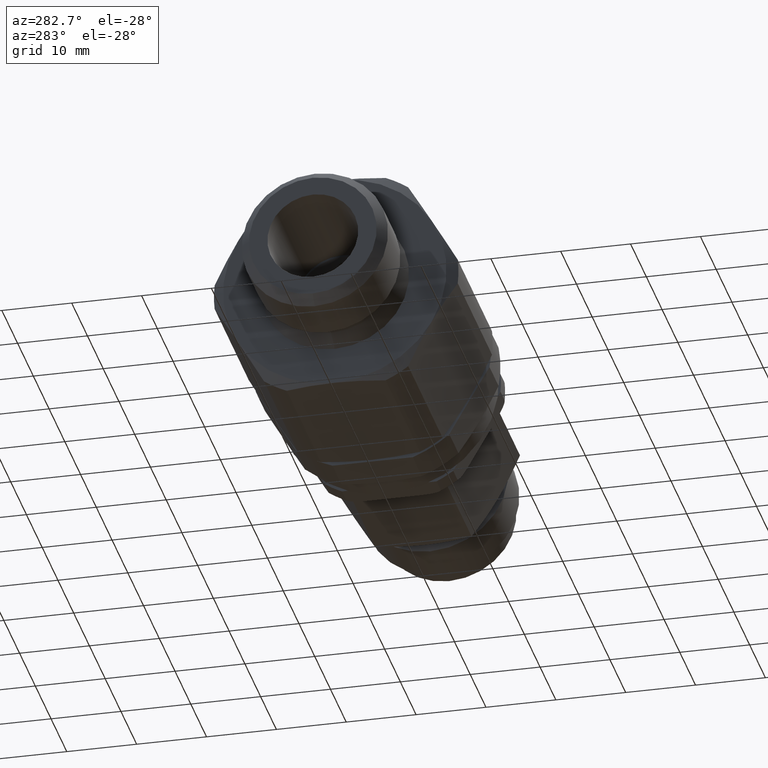
[diagram: clean part render]
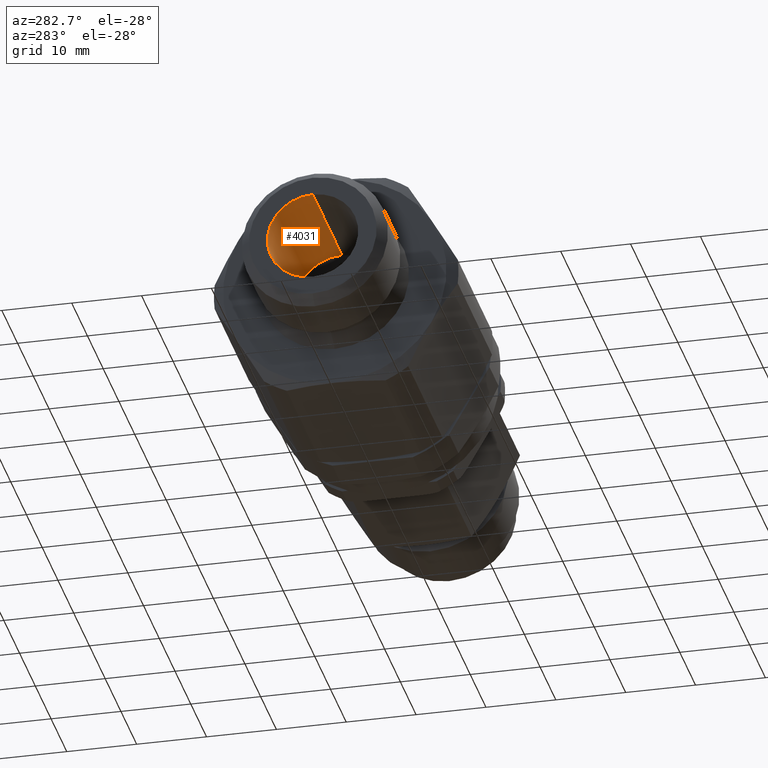
[diagram: same view with one face highlighted and labeled with its STEP entity id]
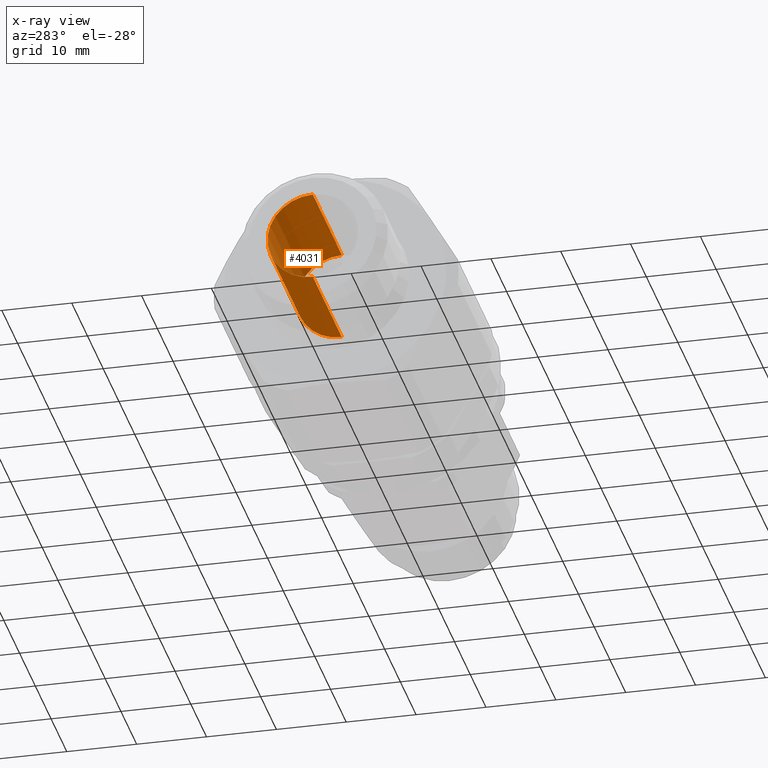
[diagram: x-ray of the same camera — body ghosted, the highlighted face saturated]
A machine part, auxiliary view. The second image highlights one B-rep face of the part: STEP entity #4031.
The next image is the same camera in x-ray: the body ghosted, the highlighted face saturated — about 2% of this face is hidden behind the body in this view.
In plain terms, the highlighted cylindrical surface (partial cylindrical patch) has radius 6.5 mm, axis along (1, -0, -0).
Its self-contained STEP definition (entity closure, byte-faithful):
#500 = CARTESIAN_POINT ( 'NONE',  ( 18.50000000000000000, 0.0000000000000000000, -6.500000000000000000 ) ) ;
#1209 = VERTEX_POINT ( 'NONE', #500 ) ;
#1315 = ORIENTED_EDGE ( 'NONE', *, *, #1531, .F. ) ;
#1316 = ORIENTED_EDGE ( 'NONE', *, *, #1533, .T. ) ;
#1318 = ORIENTED_EDGE ( 'NONE', *, *, #1550, .F. ) ;
#1531 = EDGE_CURVE ( 'NONE', #4249, #4256, #3326, .T. ) ;
#1533 = EDGE_CURVE ( 'NONE', #4281, #1209, #3329, .T. ) ;
#1550 = EDGE_CURVE ( 'NONE', #4281, #4249, #3354, .T. ) ;
#1551 = EDGE_CURVE ( 'NONE', #1209, #4256, #3355, .T. ) ;
#2387 = FACE_OUTER_BOUND ( 'NONE', #5047, .T. ) ;
#2388 = CYLINDRICAL_SURFACE ( 'NONE', #2786, 6.499999999999998200 ) ;
#2737 = AXIS2_PLACEMENT_3D ( 'NONE', #5293, #5294, #5295 ) ;
#2738 = AXIS2_PLACEMENT_3D ( 'NONE', #5296, #5297, #5298 ) ;
#2786 = AXIS2_PLACEMENT_3D ( 'NONE', #2950, #2951, #2952 ) ;
#2950 = CARTESIAN_POINT ( 'NONE',  ( 7.552600000000000000, 0.0000000000000000000, 0.0000000000000000000 ) ) ;
#2951 = DIRECTION ( 'NONE',  ( 1.000000000000000000, -0.0000000000000000000, -0.0000000000000000000 ) ) ;
#2952 = DIRECTION ( 'NONE',  ( 0.0000000000000000000, 0.0000000000000000000, -1.000000000000000000 ) ) ;
#3326 = LINE ( 'NONE', #5244, #3328 ) ;
#3328 = VECTOR ( 'NONE', #5245, 1000.000000000000000 ) ;
#3329 = LINE ( 'NONE', #5249, #3331 ) ;
#3331 = VECTOR ( 'NONE', #5250, 1000.000000000000000 ) ;
#3354 = CIRCLE ( 'NONE', #2737, 6.499999999999996400 ) ;
#3355 = CIRCLE ( 'NONE', #2738, 6.500000000000000000 ) ;
#4031 = ADVANCED_FACE ( 'NONE', ( #2387 ), #2388, .F. ) ;
#4249 = VERTEX_POINT ( 'NONE', #5863 ) ;
#4256 = VERTEX_POINT ( 'NONE', #5875 ) ;
#4281 = VERTEX_POINT ( 'NONE', #5900 ) ;
#4821 = ORIENTED_EDGE ( 'NONE', *, *, #1551, .T. ) ;
#5047 = EDGE_LOOP ( 'NONE', ( #1315, #1318, #1316, #4821 ) ) ;
#5244 = CARTESIAN_POINT ( 'NONE',  ( 7.552600000000000000, 7.960204194457793500E-016, 6.499999999999998200 ) ) ;
#5245 = DIRECTION ( 'NONE',  ( 1.000000000000000000, -0.0000000000000000000, -0.0000000000000000000 ) ) ;
#5249 = CARTESIAN_POINT ( 'NONE',  ( 7.552600000000000000, 0.0000000000000000000, -6.499999999999998200 ) ) ;
#5250 = DIRECTION ( 'NONE',  ( 1.000000000000000000, -0.0000000000000000000, -0.0000000000000000000 ) ) ;
#5293 = CARTESIAN_POINT ( 'NONE',  ( 0.0000000000000000000, 0.0000000000000000000, 0.0000000000000000000 ) ) ;
#5294 = DIRECTION ( 'NONE',  ( 1.000000000000000000, -0.0000000000000000000, -0.0000000000000000000 ) ) ;
#5295 = DIRECTION ( 'NONE',  ( 0.0000000000000000000, 0.0000000000000000000, -1.000000000000000000 ) ) ;
#5296 = CARTESIAN_POINT ( 'NONE',  ( 18.50000000000000000, 0.0000000000000000000, 0.0000000000000000000 ) ) ;
#5297 = DIRECTION ( 'NONE',  ( 1.000000000000000000, -0.0000000000000000000, -0.0000000000000000000 ) ) ;
#5298 = DIRECTION ( 'NONE',  ( 0.0000000000000000000, 0.0000000000000000000, -1.000000000000000000 ) ) ;
#5863 = CARTESIAN_POINT ( 'NONE',  ( 0.0000000000000000000, 7.960204194457792500E-016, 6.499999999999996400 ) ) ;
#5875 = CARTESIAN_POINT ( 'NONE',  ( 18.50000000000000000, 7.960204194457795500E-016, 6.500000000000000000 ) ) ;
#5900 = CARTESIAN_POINT ( 'NONE',  ( 0.0000000000000000000, 0.0000000000000000000, -6.499999999999996400 ) ) ;